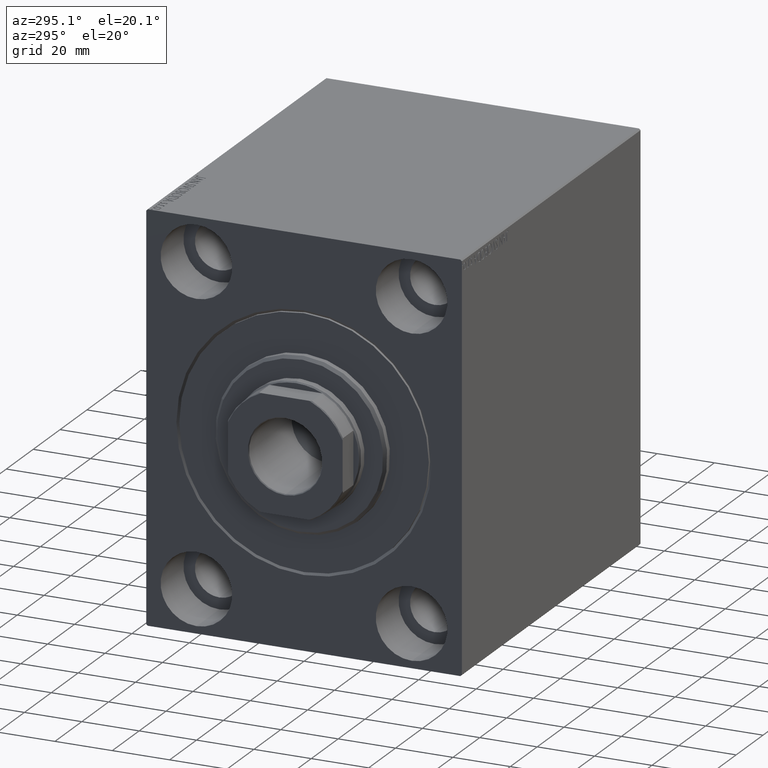
[diagram: clean part render]
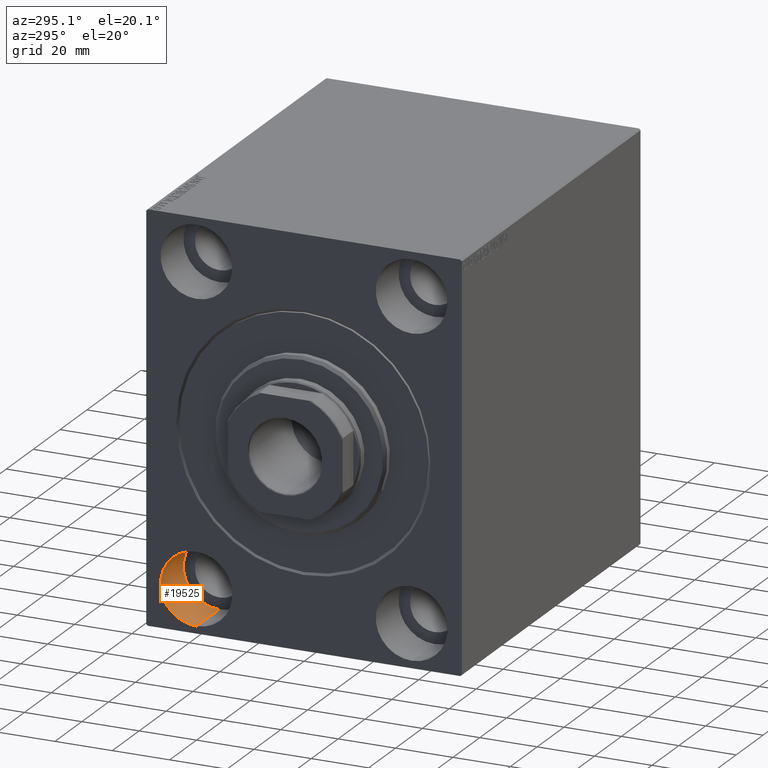
[diagram: same view with one face highlighted and labeled with its STEP entity id]
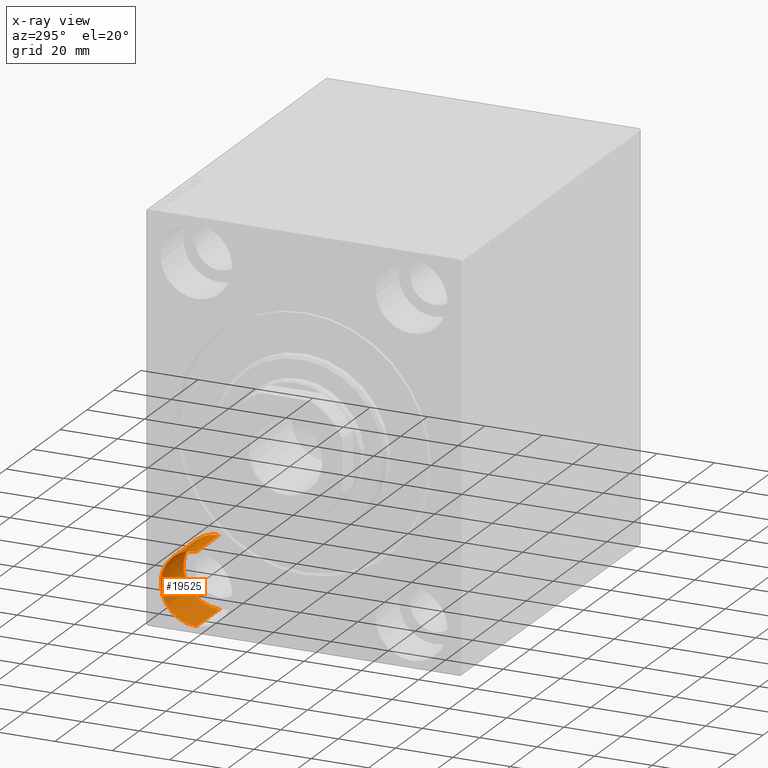
[diagram: x-ray of the same camera — body ghosted, the highlighted face saturated]
A machine part, auxiliary view. The second image highlights one B-rep face of the part: STEP entity #19525.
The next image is the same camera in x-ray: the body ghosted, the highlighted face saturated — about 0% of this face is hidden behind the body in this view.
In plain terms, the highlighted cylindrical surface (partial cylindrical patch) has radius 12.5 mm, axis along (-1, -0, -0).
Its self-contained STEP definition (entity closure, byte-faithful):
#1083 = DIRECTION ( 'NONE',  ( -1.000000000000000000, 0.000000000000000000, 0.000000000000000000 ) ) ;
#1278 = LINE ( 'NONE', #21988, #25409 ) ;
#3560 = DIRECTION ( 'NONE',  ( 0.000000000000000000, 0.000000000000000000, 1.000000000000000000 ) ) ;
#6835 = CARTESIAN_POINT ( 'NONE',  ( 17.00000000000000000, 37.49999999999997868, -42.49999999999999289 ) ) ;
#9259 = VERTEX_POINT ( 'NONE', #25177 ) ;
#10995 = VERTEX_POINT ( 'NONE', #6835 ) ;
#11883 = EDGE_CURVE ( 'NONE', #15942, #9259, #1278, .T. ) ;
#12419 = VERTEX_POINT ( 'NONE', #34277 ) ;
#13493 = AXIS2_PLACEMENT_3D ( 'NONE', #26739, #20474, #3560 ) ;
#13718 = CIRCLE ( 'NONE', #18042, 12.49999999999999645 ) ;
#14096 = CIRCLE ( 'NONE', #39013, 12.49999999999999645 ) ;
#15799 = CARTESIAN_POINT ( 'NONE',  ( 0.000000000000000000, 37.49999999999997868, -54.99999999999999289 ) ) ;
#15942 = VERTEX_POINT ( 'NONE', #22164 ) ;
#16279 = EDGE_CURVE ( 'NONE', #10995, #15942, #14096, .T. ) ;
#16432 = CARTESIAN_POINT ( 'NONE',  ( 17.00000000000000000, 37.49999999999997868, -42.49999999999999289 ) ) ;
#17996 = DIRECTION ( 'NONE',  ( 0.000000000000000000, 0.000000000000000000, 1.000000000000000000 ) ) ;
#18042 = AXIS2_PLACEMENT_3D ( 'NONE', #15799, #32500, #29380 ) ;
#19525 = ADVANCED_FACE ( 'NONE', ( #29847 ), #30061, .F. ) ;
#20474 = DIRECTION ( 'NONE',  ( -1.000000000000000000, -0.000000000000000000, -0.000000000000000000 ) ) ;
#21366 = ORIENTED_EDGE ( 'NONE', *, *, #29637, .T. ) ;
#21988 = CARTESIAN_POINT ( 'NONE',  ( 17.00000000000000000, 37.49999999999997868, -67.49999999999998579 ) ) ;
#22164 = CARTESIAN_POINT ( 'NONE',  ( 17.00000000000000000, 37.49999999999997868, -67.49999999999998579 ) ) ;
#25177 = CARTESIAN_POINT ( 'NONE',  ( 0.000000000000000000, 37.49999999999997868, -67.49999999999998579 ) ) ;
#25409 = VECTOR ( 'NONE', #35565, 1000.000000000000000 ) ;
#26739 = CARTESIAN_POINT ( 'NONE',  ( 17.00000000000000000, 37.49999999999997868, -54.99999999999999289 ) ) ;
#27394 = ORIENTED_EDGE ( 'NONE', *, *, #16279, .F. ) ;
#27749 = EDGE_CURVE ( 'NONE', #10995, #12419, #40479, .T. ) ;
#29380 = DIRECTION ( 'NONE',  ( 0.000000000000000000, 0.000000000000000000, 1.000000000000000000 ) ) ;
#29637 = EDGE_CURVE ( 'NONE', #12419, #9259, #13718, .T. ) ;
#29847 = FACE_OUTER_BOUND ( 'NONE', #35726, .T. ) ;
#30012 = DIRECTION ( 'NONE',  ( -1.000000000000000000, -0.000000000000000000, -0.000000000000000000 ) ) ;
#30061 = CYLINDRICAL_SURFACE ( 'NONE', #13493, 12.49999999999999645 ) ;
#31911 = ORIENTED_EDGE ( 'NONE', *, *, #27749, .T. ) ;
#32500 = DIRECTION ( 'NONE',  ( -1.000000000000000000, 0.000000000000000000, 0.000000000000000000 ) ) ;
#34277 = CARTESIAN_POINT ( 'NONE',  ( 0.000000000000000000, 37.49999999999997868, -42.49999999999999289 ) ) ;
#34422 = VECTOR ( 'NONE', #30012, 1000.000000000000000 ) ;
#35565 = DIRECTION ( 'NONE',  ( -1.000000000000000000, -0.000000000000000000, -0.000000000000000000 ) ) ;
#35726 = EDGE_LOOP ( 'NONE', ( #36560, #27394, #31911, #21366 ) ) ;
#36560 = ORIENTED_EDGE ( 'NONE', *, *, #11883, .F. ) ;
#38700 = CARTESIAN_POINT ( 'NONE',  ( 17.00000000000000000, 37.49999999999997868, -54.99999999999999289 ) ) ;
#39013 = AXIS2_PLACEMENT_3D ( 'NONE', #38700, #1083, #17996 ) ;
#40479 = LINE ( 'NONE', #16432, #34422 ) ;